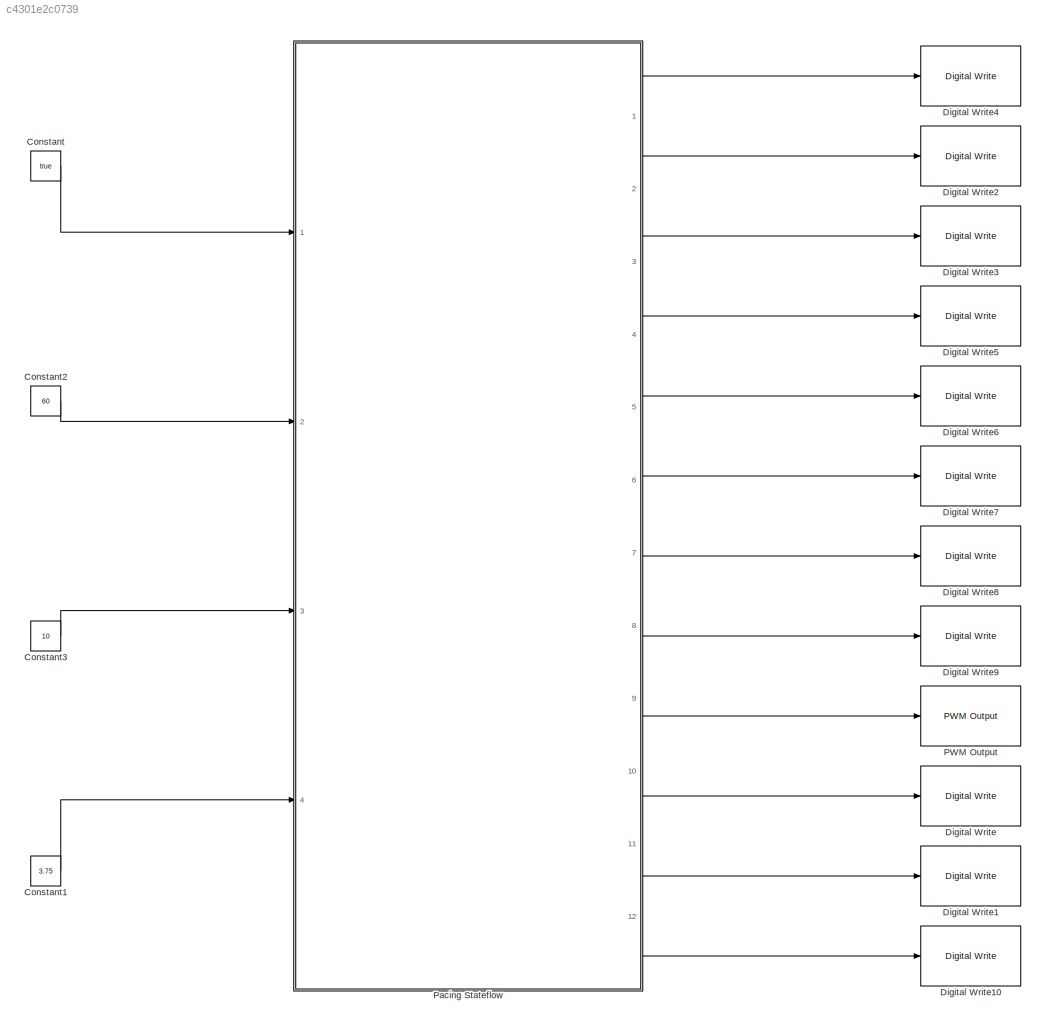
MODEL slx_c4301e2c0739
KIND model
CONFIG AbsTol = auto
CONFIG EnableMultiTasking = on
CONFIG FixedStep = 1e-3
CONFIG MaxStep = auto
CONFIG MinStep = auto
CONFIG RelTol = 1e-3
CONFIG SampleTimeConstraint = Unconstrained
CONFIG Solver = FixedStepAuto
CONFIG SolverName = FixedStepAuto
CONFIG StartTime = 0.0
CONFIG StopTime = 6
BLOCK [Constant] Constant
  OutDataTypeStr = boolean
  Value = true
BLOCK [Constant] Constant1
  OutDataTypeStr = int16
  Value = 3.75
BLOCK [Constant] Constant2
  OutDataTypeStr = int16
  Value = 60
BLOCK [Constant] Constant3
  OutDataTypeStr = int16
  Value = 10
BLOCK [Reference] Digital Write  REF=frdmk64flib/Digital Write
  Ports = [1]
  SourceBlock = frdmk64flib/Digital Write
  SourceProductBaseCode = EC_FRDM_K64F
  SourceProductName = Simulink Coder Support Package for NXP FRDM-K64F Board
  SourceType = freedomk64f.DigitalWrite
BLOCK [Reference] Digital Write1  REF=frdmk64flib/Digital Write
  Ports = [1]
  SourceBlock = frdmk64flib/Digital Write
  SourceProductBaseCode = EC_FRDM_K64F
  SourceProductName = Simulink Coder Support Package for NXP FRDM-K64F Board
  SourceType = freedomk64f.DigitalWrite
BLOCK [Reference] Digital Write10  REF=frdmk64flib/Digital Write
  Ports = [1]
  SourceBlock = frdmk64flib/Digital Write
  SourceProductBaseCode = EC_FRDM_K64F
  SourceProductName = Simulink Coder Support Package for NXP FRDM-K64F Board
  SourceType = freedomk64f.DigitalWrite
BLOCK [Reference] Digital Write2  REF=frdmk64flib/Digital Write
  Ports = [1]
  SourceBlock = frdmk64flib/Digital Write
  SourceProductBaseCode = EC_FRDM_K64F
  SourceProductName = Simulink Coder Support Package for NXP FRDM-K64F Board
  SourceType = freedomk64f.DigitalWrite
BLOCK [Reference] Digital Write3  REF=frdmk64flib/Digital Write
  Ports = [1]
  SourceBlock = frdmk64flib/Digital Write
  SourceProductBaseCode = EC_FRDM_K64F
  SourceProductName = Simulink Coder Support Package for NXP FRDM-K64F Board
  SourceType = freedomk64f.DigitalWrite
BLOCK [Reference] Digital Write4  REF=frdmk64flib/Digital Write
  Ports = [1]
  SourceBlock = frdmk64flib/Digital Write
  SourceProductBaseCode = EC_FRDM_K64F
  SourceProductName = Simulink Coder Support Package for NXP FRDM-K64F Board
  SourceType = freedomk64f.DigitalWrite
BLOCK [Reference] Digital Write5  REF=frdmk64flib/Digital Write
  Ports = [1]
  SourceBlock = frdmk64flib/Digital Write
  SourceProductBaseCode = EC_FRDM_K64F
  SourceProductName = Simulink Coder Support Package for NXP FRDM-K64F Board
  SourceType = freedomk64f.DigitalWrite
BLOCK [Reference] Digital Write6  REF=frdmk64flib/Digital Write
  Ports = [1]
  SourceBlock = frdmk64flib/Digital Write
  SourceProductBaseCode = EC_FRDM_K64F
  SourceProductName = Simulink Coder Support Package for NXP FRDM-K64F Board
  SourceType = freedomk64f.DigitalWrite
BLOCK [Reference] Digital Write7  REF=frdmk64flib/Digital Write
  Ports = [1]
  SourceBlock = frdmk64flib/Digital Write
  SourceProductBaseCode = EC_FRDM_K64F
  SourceProductName = Simulink Coder Support Package for NXP FRDM-K64F Board
  SourceType = freedomk64f.DigitalWrite
BLOCK [Reference] Digital Write8  REF=frdmk64flib/Digital Write
  Ports = [1]
  SourceBlock = frdmk64flib/Digital Write
  SourceProductBaseCode = EC_FRDM_K64F
  SourceProductName = Simulink Coder Support Package for NXP FRDM-K64F Board
  SourceType = freedomk64f.DigitalWrite
BLOCK [Reference] Digital Write9  REF=frdmk64flib/Digital Write
  Ports = [1]
  SourceBlock = frdmk64flib/Digital Write
  SourceProductBaseCode = EC_FRDM_K64F
  SourceProductName = Simulink Coder Support Package for NXP FRDM-K64F Board
  SourceType = freedomk64f.DigitalWrite
BLOCK [Reference] PWM Output  REF=frdmk64flib/PWM Output
  Ports = [1]
  SourceBlock = frdmk64flib/PWM Output
  SourceProductBaseCode = EC_FRDM_K64F
  SourceProductName = Simulink Coder Support Package for NXP FRDM-K64F Board
  SourceType = freedomk64f.PWMOutput
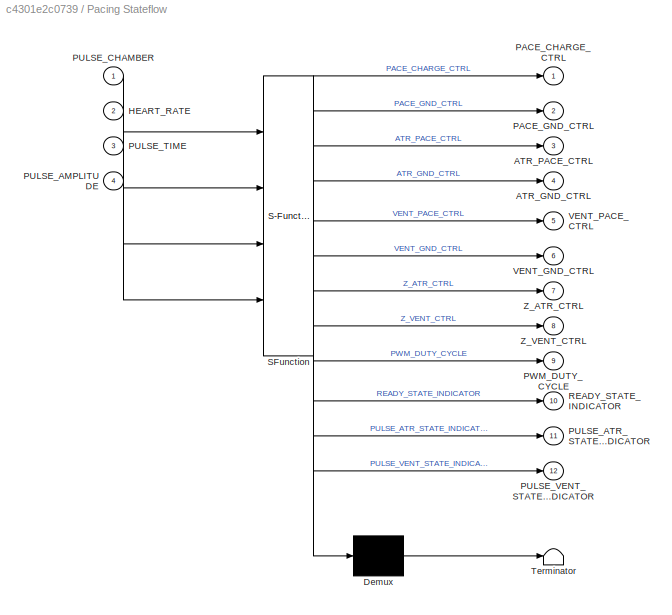
BLOCK [SubSystem] Pacing Stateflow
  ErrorFcn = Stateflow.Translate.translate
  PermitHierarchicalResolution = ExplicitOnly
  Ports = [4, 12]
  RequestExecContextInheritance = off
  SFBlockType = Chart
  TreatAsAtomicUnit = on
  Variant = off
BLOCK [Demux] Pacing Stateflow/ Demux 
  Outputs = 1
  Ports = [1, 1]
BLOCK [S-Function] Pacing Stateflow/ SFunction 
  EnableBusSupport = on
  FunctionName = sf_sfun
  Parameters = false
  PortCounts = [4 13]
  Ports = [4, 13]
  SFcnIsStateOwnerBlock = off
  SFunctionDeploymentMode = off
  Tag = Stateflow S-Function Assignment1 3
BLOCK [Terminator] Pacing Stateflow/ Terminator 
BLOCK [Outport] Pacing Stateflow/ATR_GND_CTRL
  IconDisplay = Port number
  Port = 4
BLOCK [Outport] Pacing Stateflow/ATR_PACE_CTRL
  IconDisplay = Port number
  Port = 3
BLOCK [Inport] Pacing Stateflow/HEART_RATE
  IconDisplay = Port number
  Port = 2
BLOCK [Outport] Pacing Stateflow/PACE_CHARGE_CTRL
  IconDisplay = Port number
BLOCK [Outport] Pacing Stateflow/PACE_GND_CTRL
  IconDisplay = Port number
  Port = 2
BLOCK [Inport] Pacing Stateflow/PULSE_AMPLITUDE
  IconDisplay = Port number
  Port = 4
BLOCK [Outport] Pacing Stateflow/PULSE_ATR_STATE_INDICATOR
  IconDisplay = Port number
  Port = 11
BLOCK [Inport] Pacing Stateflow/PULSE_CHAMBER
  IconDisplay = Port number
BLOCK [Inport] Pacing Stateflow/PULSE_TIME
  IconDisplay = Port number
  Port = 3
BLOCK [Outport] Pacing Stateflow/PULSE_VENT_STATE_INDICATOR
  IconDisplay = Port number
  Port = 12
BLOCK [Outport] Pacing Stateflow/PWM_DUTY_CYCLE
  IconDisplay = Port number
  Port = 9
BLOCK [Outport] Pacing Stateflow/READY_STATE_INDICATOR
  IconDisplay = Port number
  Port = 10
BLOCK [Outport] Pacing Stateflow/VENT_GND_CTRL
  IconDisplay = Port number
  Port = 6
BLOCK [Outport] Pacing Stateflow/VENT_PACE_CTRL
  IconDisplay = Port number
  Port = 5
BLOCK [Outport] Pacing Stateflow/Z_ATR_CTRL
  IconDisplay = Port number
  Port = 7
BLOCK [Outport] Pacing Stateflow/Z_VENT_CTRL
  IconDisplay = Port number
  Port = 8
LINE Constant1:1 -> Pacing Stateflow:4
LINE Constant2:1 -> Pacing Stateflow:2
LINE Constant3:1 -> Pacing Stateflow:3
LINE Constant:1 -> Pacing Stateflow:1
LINE Pacing Stateflow:1 -> Digital Write4:1
LINE Pacing Stateflow:10 -> Digital Write:1
LINE Pacing Stateflow:11 -> Digital Write1:1
LINE Pacing Stateflow:12 -> Digital Write10:1
LINE Pacing Stateflow:2 -> Digital Write2:1
LINE Pacing Stateflow:3 -> Digital Write3:1
LINE Pacing Stateflow:4 -> Digital Write5:1
LINE Pacing Stateflow:5 -> Digital Write6:1
LINE Pacing Stateflow:6 -> Digital Write7:1
LINE Pacing Stateflow:7 -> Digital Write8:1
LINE Pacing Stateflow:8 -> Digital Write9:1
LINE Pacing Stateflow:9 -> PWM Output:1
CHART Pacing Stateflow states=3 transitions=5
  STATE_LABEL 'READY_NEXT_PULSE\n\nentry:\nduring:\nATR_PACE_CTRL = false;\nVENT_PACE_CTRL = false;\nPWM_DUTY_CYCLE = 20*PULSE_AMPLITUDE;\nPACE_CHARGE_CTRL = true;\nPACE_GND_CTRL = true;\nZ_ATR_CTRL = false;\nZ_VENT_CTRL = false;\nATR_GND_CTRL = true;\nVENT_GND_CTRL = true;\nREADY_STATE_INDICATOR = true;\nexit:\nREADY_STATE_INDICATOR = false;\n'
  STATE_LABEL 'PULSE_VENTRICLE\n\nentry:\nduring:\nPACE_CHARGE_CTRL = false;\nPACE_GND_CTRL = false;\nATR_PACE_CTRL = false;\nATR_GND_CTRL = false;\nZ_ATR_CTRL = false;\nZ_VENT_CTRL = false;\nVENT_GND_CTRL = false;\nVENT_PACE_CTRL = true;\nPULSE_VENT_STATE_INDICATOR = true;\nexit:\nPULSE_VENT_STATE_INDICATOR = false;'
  STATE_LABEL 'PULSE_ATRIUM\n\nentry:\nduring:\nPACE_CHARGE_CTRL = false;\nPACE_GND_CTRL = false;\nVENT_PACE_CTRL = false;\nVENT_GND_CTRL = false;\nZ_ATR_CTRL = false;\nZ_VENT_CTRL = false;\nATR_GND_CTRL = false;\nATR_PACE_CTRL = true;\nPULSE_ATR_STATE_INDICATOR = true;\nexit:\nPULSE_ATR_STATE_INDICATOR = false;'
